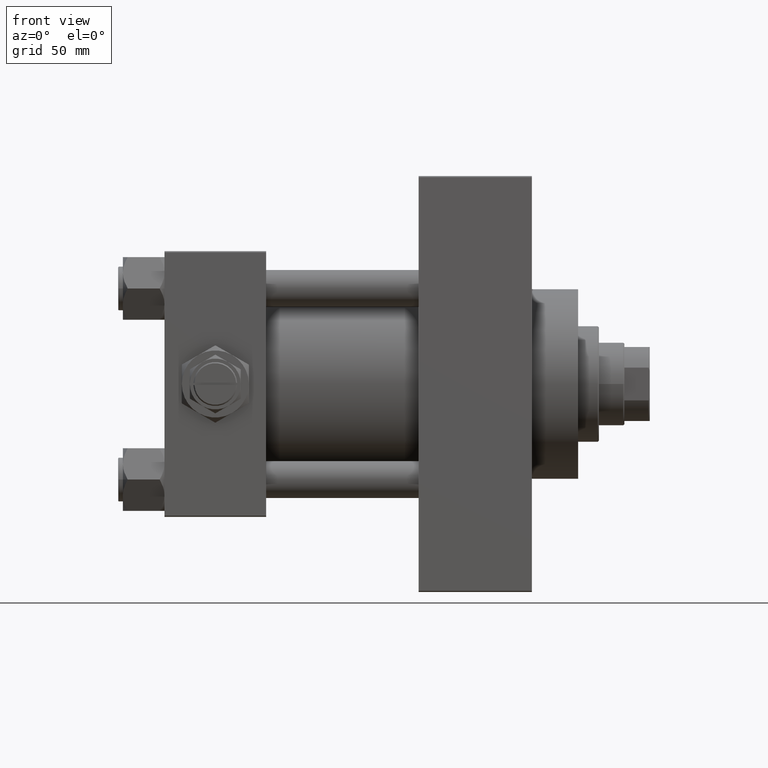
[diagram: clean part render]
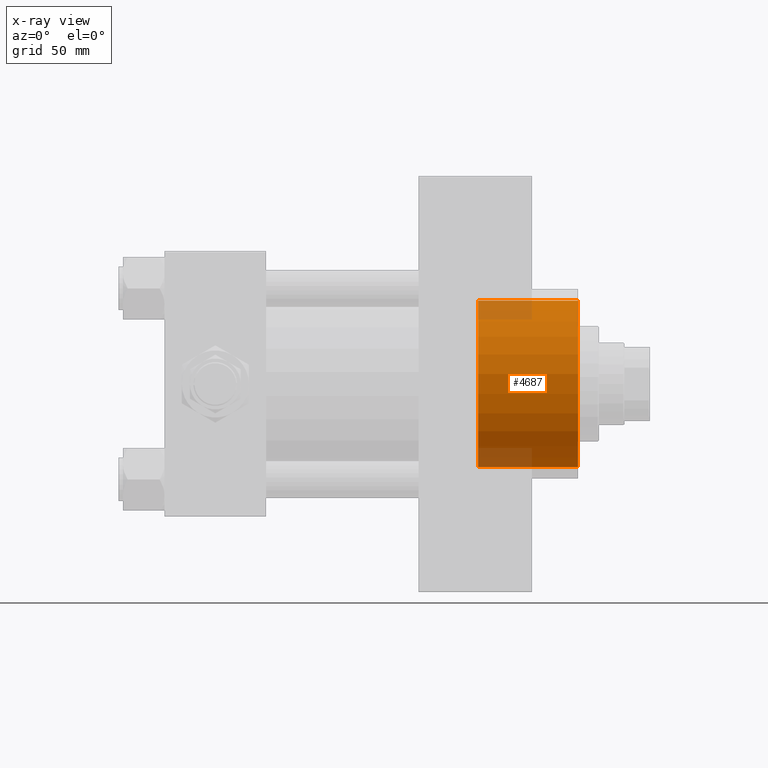
[diagram: x-ray — body ghosted, one internal face saturated and labeled with its STEP entity id]
A machine part, front view, then the same camera in x-ray: the body is ghosted and one INTERNAL B-rep face — a face not visible from any outside direction — is saturated and labeled: STEP entity #4687.
In plain terms, the highlighted cylindrical surface (partial cylindrical patch) has radius 36 mm, axis along (1, 0, 0).
Its self-contained STEP definition (entity closure, byte-faithful):
#832 = LINE ( 'NONE', #23627, #36242 ) ;
#3136 = CARTESIAN_POINT ( 'NONE',  ( 179.0000000000000000, 0.000000000000000000, 0.000000000000000000 ) ) ;
#3624 = VERTEX_POINT ( 'NONE', #13656 ) ;
#4204 = LINE ( 'NONE', #36401, #31806 ) ;
#4687 = ADVANCED_FACE ( 'NONE', ( #23093 ), #14838, .F. ) ;
#5891 = DIRECTION ( 'NONE',  ( 1.000000000000000000, -0.000000000000000000, -0.000000000000000000 ) ) ;
#6150 = AXIS2_PLACEMENT_3D ( 'NONE', #35993, #24269, #32012 ) ;
#6514 = CIRCLE ( 'NONE', #8129, 36.00000000000000000 ) ;
#6808 = EDGE_CURVE ( 'NONE', #47082, #3624, #4204, .T. ) ;
#8129 = AXIS2_PLACEMENT_3D ( 'NONE', #3136, #29918, #45111 ) ;
#11328 = CARTESIAN_POINT ( 'NONE',  ( 135.7400000000000091, 0.000000000000000000, 0.000000000000000000 ) ) ;
#12587 = AXIS2_PLACEMENT_3D ( 'NONE', #11328, #30120, #26369 ) ;
#13234 = VERTEX_POINT ( 'NONE', #46330 ) ;
#13656 = CARTESIAN_POINT ( 'NONE',  ( 179.0000000000000000, 4.408728476930470856E-15, 36.00000000000000000 ) ) ;
#14838 = CYLINDRICAL_SURFACE ( 'NONE', #12587, 36.00000000000000000 ) ;
#15419 = CARTESIAN_POINT ( 'NONE',  ( 135.7400000000000091, 4.408728476930470856E-15, 36.00000000000000000 ) ) ;
#16362 = DIRECTION ( 'NONE',  ( 1.000000000000000000, -0.000000000000000000, -0.000000000000000000 ) ) ;
#17737 = ORIENTED_EDGE ( 'NONE', *, *, #6808, .T. ) ;
#20096 = ORIENTED_EDGE ( 'NONE', *, *, #21148, .T. ) ;
#21148 = EDGE_CURVE ( 'NONE', #3624, #13234, #6514, .T. ) ;
#22903 = CIRCLE ( 'NONE', #6150, 36.00000000000000000 ) ;
#22973 = ORIENTED_EDGE ( 'NONE', *, *, #35801, .F. ) ;
#23093 = FACE_OUTER_BOUND ( 'NONE', #39947, .T. ) ;
#23627 = CARTESIAN_POINT ( 'NONE',  ( 135.7400000000000091, 0.000000000000000000, -36.00000000000000000 ) ) ;
#24269 = DIRECTION ( 'NONE',  ( 1.000000000000000000, 0.000000000000000000, 0.000000000000000000 ) ) ;
#26369 = DIRECTION ( 'NONE',  ( 0.000000000000000000, 0.000000000000000000, -1.000000000000000000 ) ) ;
#29131 = EDGE_CURVE ( 'NONE', #48222, #13234, #832, .T. ) ;
#29918 = DIRECTION ( 'NONE',  ( 1.000000000000000000, 0.000000000000000000, 0.000000000000000000 ) ) ;
#30120 = DIRECTION ( 'NONE',  ( 1.000000000000000000, -0.000000000000000000, -0.000000000000000000 ) ) ;
#31806 = VECTOR ( 'NONE', #5891, 1000.000000000000000 ) ;
#32012 = DIRECTION ( 'NONE',  ( 0.000000000000000000, 0.000000000000000000, -1.000000000000000000 ) ) ;
#35801 = EDGE_CURVE ( 'NONE', #47082, #48222, #22903, .T. ) ;
#35993 = CARTESIAN_POINT ( 'NONE',  ( 135.7400000000000091, 0.000000000000000000, 0.000000000000000000 ) ) ;
#36100 = ORIENTED_EDGE ( 'NONE', *, *, #29131, .F. ) ;
#36242 = VECTOR ( 'NONE', #16362, 1000.000000000000000 ) ;
#36401 = CARTESIAN_POINT ( 'NONE',  ( 135.7400000000000091, 4.408728476930470856E-15, 36.00000000000000000 ) ) ;
#39947 = EDGE_LOOP ( 'NONE', ( #22973, #17737, #20096, #36100 ) ) ;
#44238 = CARTESIAN_POINT ( 'NONE',  ( 135.7400000000000091, 0.000000000000000000, -36.00000000000000000 ) ) ;
#45111 = DIRECTION ( 'NONE',  ( 0.000000000000000000, 0.000000000000000000, -1.000000000000000000 ) ) ;
#46330 = CARTESIAN_POINT ( 'NONE',  ( 179.0000000000000000, 0.000000000000000000, -36.00000000000000000 ) ) ;
#47082 = VERTEX_POINT ( 'NONE', #15419 ) ;
#48222 = VERTEX_POINT ( 'NONE', #44238 ) ;